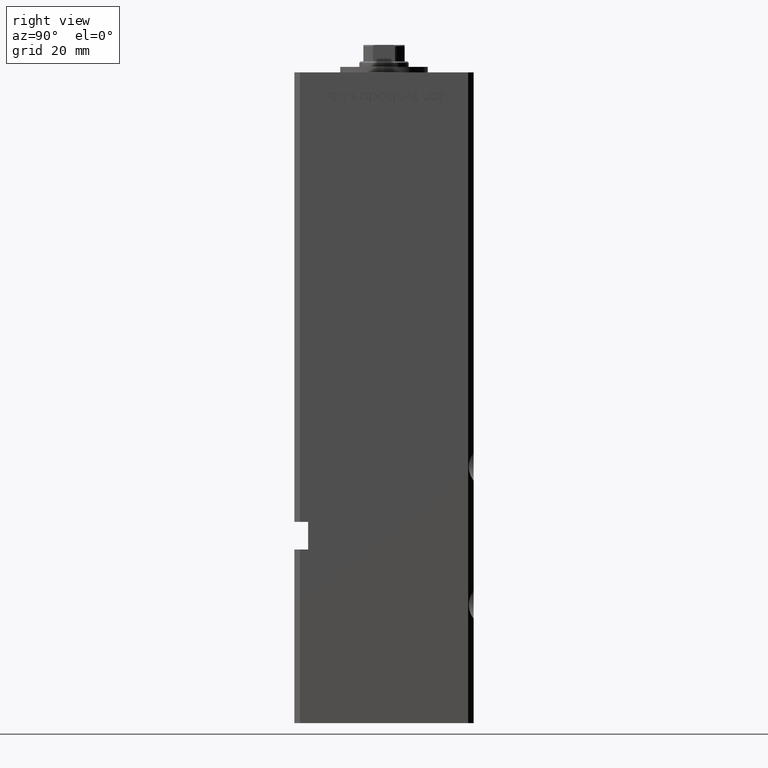
[diagram: clean part render]
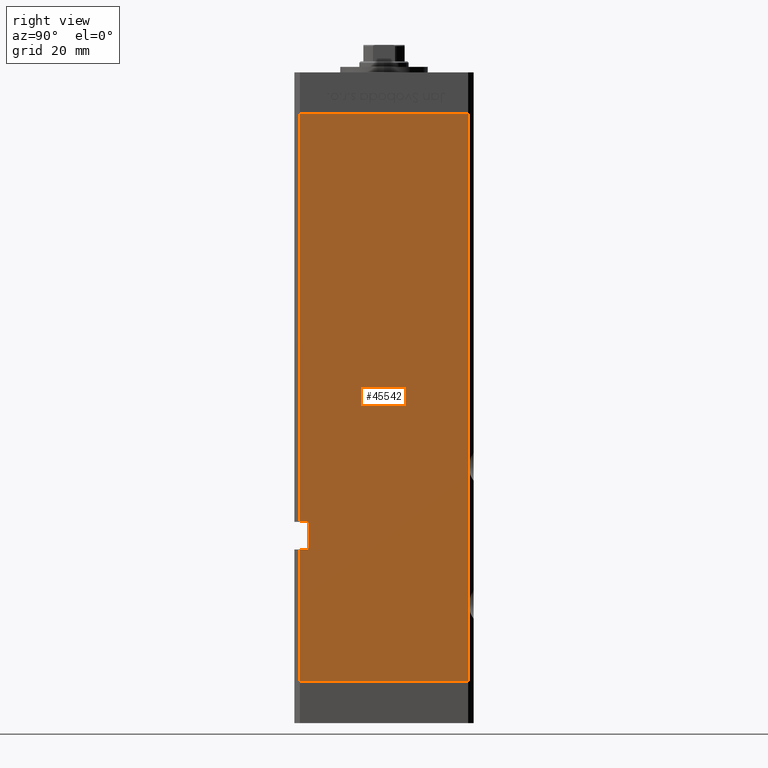
[diagram: same view with one face highlighted and labeled with its STEP entity id]
A machine part, right view. The second image highlights one B-rep face of the part: STEP entity #45542.
In plain terms, the highlighted planar face has unit normal (1, -0, 0).
Its self-contained STEP definition (entity closure, byte-faithful):
#8 = VECTOR ( 'NONE', #3339, 1000.000000000000000 ) ;
#370 = EDGE_LOOP ( 'NONE', ( #2803, #7353, #40391, #19763, #9198, #38321, #38741, #36149 ) ) ;
#381 = DIRECTION ( 'NONE',  ( -0.000000000000000000, -0.000000000000000000, -1.000000000000000000 ) ) ;
#474 = VECTOR ( 'NONE', #12975, 1000.000000000000000 ) ;
#683 = VERTEX_POINT ( 'NONE', #9912 ) ;
#1975 = LINE ( 'NONE', #38570, #4754 ) ;
#2803 = ORIENTED_EDGE ( 'NONE', *, *, #29054, .T. ) ;
#3339 = DIRECTION ( 'NONE',  ( -0.000000000000000000, -0.000000000000000000, 1.000000000000000000 ) ) ;
#4166 = CARTESIAN_POINT ( 'NONE',  ( 37.50000000000001421, 30.50000000000001066, 0.000000000000000000 ) ) ;
#4754 = VECTOR ( 'NONE', #9760, 1000.000000000000000 ) ;
#5053 = DIRECTION ( 'NONE',  ( 3.412570772413390973E-16, 1.000000000000000000, 0.000000000000000000 ) ) ;
#7353 = ORIENTED_EDGE ( 'NONE', *, *, #52603, .T. ) ;
#7372 = VECTOR ( 'NONE', #381, 1000.000000000000000 ) ;
#7766 = DIRECTION ( 'NONE',  ( 1.000000000000000000, -3.412570772413390973E-16, 0.000000000000000000 ) ) ;
#8558 = DIRECTION ( 'NONE',  ( -3.412570772413390973E-16, -1.000000000000000000, 0.000000000000000000 ) ) ;
#9198 = ORIENTED_EDGE ( 'NONE', *, *, #47368, .T. ) ;
#9760 = DIRECTION ( 'NONE',  ( -0.000000000000000000, -1.000000000000000000, -0.000000000000000000 ) ) ;
#9912 = CARTESIAN_POINT ( 'NONE',  ( 37.50000000000000711, -27.50000000000000000, 57.99999999999999289 ) ) ;
#11269 = CARTESIAN_POINT ( 'NONE',  ( 37.49999999999999289, -30.50000000000000000, 206.0000000000000000 ) ) ;
#11610 = CARTESIAN_POINT ( 'NONE',  ( 37.49999999999999289, -27.50000000000000000, 47.99999999999998579 ) ) ;
#12529 = EDGE_CURVE ( 'NONE', #683, #14721, #44734, .T. ) ;
#12975 = DIRECTION ( 'NONE',  ( -3.412570772413390973E-16, -1.000000000000000000, 0.000000000000000000 ) ) ;
#13003 = LINE ( 'NONE', #13535, #17729 ) ;
#13535 = CARTESIAN_POINT ( 'NONE',  ( 37.50000000000001421, 30.50000000000001066, 206.0000000000000000 ) ) ;
#13571 = VERTEX_POINT ( 'NONE', #30516 ) ;
#14721 = VERTEX_POINT ( 'NONE', #18638 ) ;
#15436 = LINE ( 'NONE', #28355, #8 ) ;
#15846 = FACE_OUTER_BOUND ( 'NONE', #370, .T. ) ;
#17729 = VECTOR ( 'NONE', #42570, 1000.000000000000000 ) ;
#18638 = CARTESIAN_POINT ( 'NONE',  ( 37.50000000000000711, -30.50000000000000355, 57.99999999999999289 ) ) ;
#19763 = ORIENTED_EDGE ( 'NONE', *, *, #30863, .F. ) ;
#20121 = CARTESIAN_POINT ( 'NONE',  ( 37.50000000000000711, -30.50000000000000355, 47.99999999999998579 ) ) ;
#20354 = CARTESIAN_POINT ( 'NONE',  ( 37.49999999999999289, -30.50000000000000000, 206.0000000000000000 ) ) ;
#21161 = CARTESIAN_POINT ( 'NONE',  ( 37.50000000000001421, 30.50000000000001066, 206.0000000000000000 ) ) ;
#23117 = VECTOR ( 'NONE', #8558, 1000.000000000000000 ) ;
#27695 = DIRECTION ( 'NONE',  ( -0.000000000000000000, -0.000000000000000000, -1.000000000000000000 ) ) ;
#28233 = PLANE ( 'NONE',  #45923 ) ;
#28355 = CARTESIAN_POINT ( 'NONE',  ( 37.50000000000000711, -27.50000000000000000, 57.99999999999999289 ) ) ;
#29054 = EDGE_CURVE ( 'NONE', #50283, #39011, #1975, .T. ) ;
#30516 = CARTESIAN_POINT ( 'NONE',  ( 37.49999999999999289, -30.50000000000000000, 0.000000000000000000 ) ) ;
#30863 = EDGE_CURVE ( 'NONE', #51751, #43300, #13003, .T. ) ;
#31535 = VECTOR ( 'NONE', #27695, 1000.000000000000000 ) ;
#32793 = LINE ( 'NONE', #11269, #31535 ) ;
#32996 = VERTEX_POINT ( 'NONE', #20354 ) ;
#33169 = DIRECTION ( 'NONE',  ( -0.000000000000000000, -1.000000000000000000, -0.000000000000000000 ) ) ;
#33183 = EDGE_CURVE ( 'NONE', #32996, #14721, #32793, .T. ) ;
#36145 = LINE ( 'NONE', #37737, #474 ) ;
#36149 = ORIENTED_EDGE ( 'NONE', *, *, #40582, .F. ) ;
#36567 = CARTESIAN_POINT ( 'NONE',  ( 37.50000000000001421, 30.50000000000001066, 0.000000000000000000 ) ) ;
#37085 = VECTOR ( 'NONE', #33169, 1000.000000000000000 ) ;
#37249 = LINE ( 'NONE', #48614, #7372 ) ;
#37433 = EDGE_CURVE ( 'NONE', #43300, #13571, #48659, .T. ) ;
#37737 = CARTESIAN_POINT ( 'NONE',  ( 37.50000000000001421, 30.50000000000001066, 206.0000000000000000 ) ) ;
#38321 = ORIENTED_EDGE ( 'NONE', *, *, #33183, .T. ) ;
#38570 = CARTESIAN_POINT ( 'NONE',  ( 37.50000000000000711, -27.50000000000000000, 47.99999999999998579 ) ) ;
#38741 = ORIENTED_EDGE ( 'NONE', *, *, #12529, .F. ) ;
#39011 = VERTEX_POINT ( 'NONE', #20121 ) ;
#40391 = ORIENTED_EDGE ( 'NONE', *, *, #37433, .F. ) ;
#40582 = EDGE_CURVE ( 'NONE', #50283, #683, #15436, .T. ) ;
#42570 = DIRECTION ( 'NONE',  ( -0.000000000000000000, -0.000000000000000000, -1.000000000000000000 ) ) ;
#43300 = VERTEX_POINT ( 'NONE', #4166 ) ;
#44626 = CARTESIAN_POINT ( 'NONE',  ( 37.50000000000001421, 30.50000000000001066, 206.0000000000000000 ) ) ;
#44734 = LINE ( 'NONE', #48778, #37085 ) ;
#45542 = ADVANCED_FACE ( 'NONE', ( #15846 ), #28233, .T. ) ;
#45923 = AXIS2_PLACEMENT_3D ( 'NONE', #44626, #7766, #5053 ) ;
#47368 = EDGE_CURVE ( 'NONE', #51751, #32996, #36145, .T. ) ;
#48614 = CARTESIAN_POINT ( 'NONE',  ( 37.49999999999999289, -30.50000000000000000, 206.0000000000000000 ) ) ;
#48659 = LINE ( 'NONE', #36567, #23117 ) ;
#48778 = CARTESIAN_POINT ( 'NONE',  ( 37.50000000000000711, -27.50000000000000000, 57.99999999999999289 ) ) ;
#50283 = VERTEX_POINT ( 'NONE', #11610 ) ;
#51751 = VERTEX_POINT ( 'NONE', #21161 ) ;
#52603 = EDGE_CURVE ( 'NONE', #39011, #13571, #37249, .T. ) ;